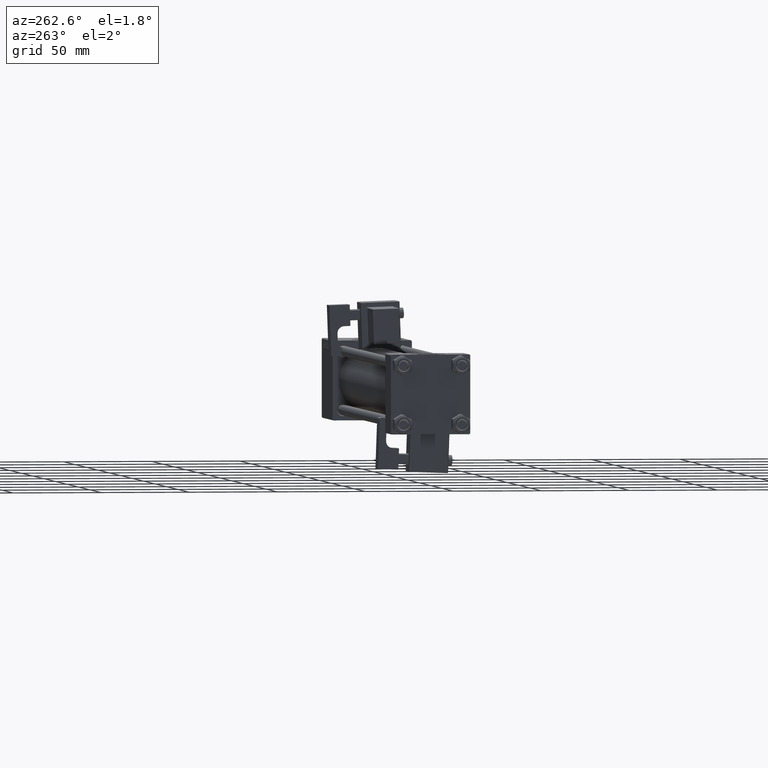
[diagram: clean part render]
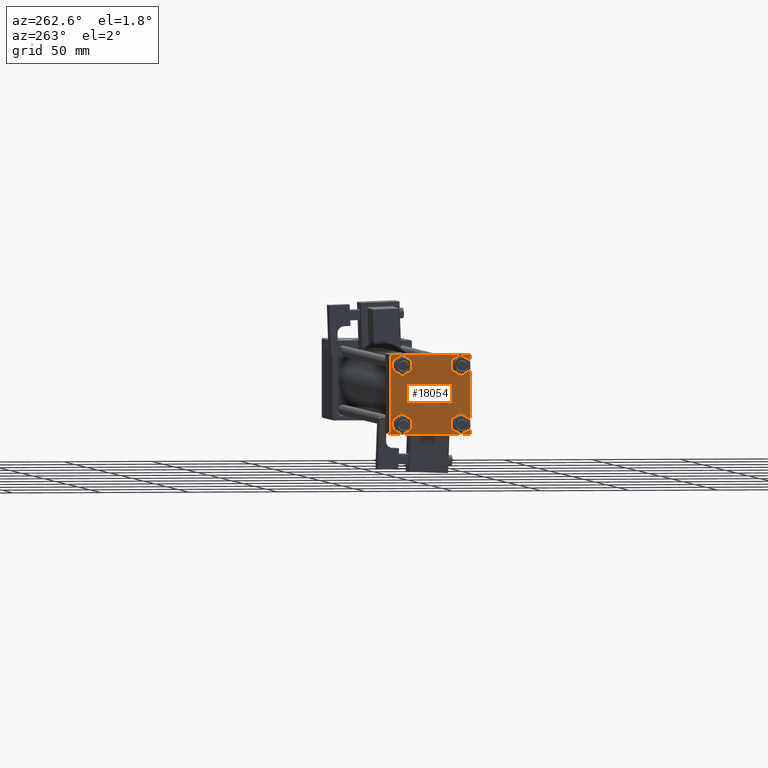
[diagram: same view with one face highlighted and labeled with its STEP entity id]
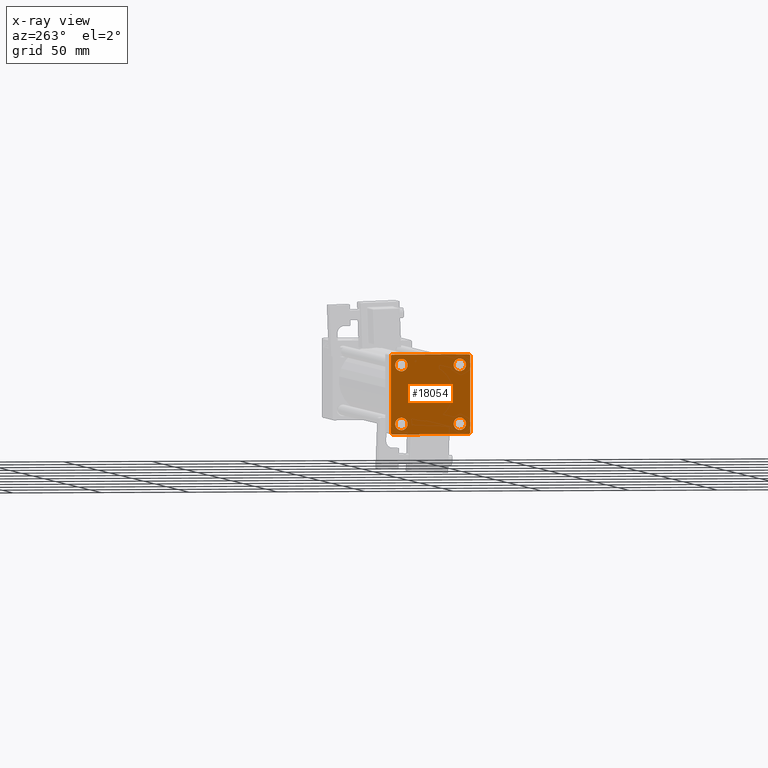
[diagram: x-ray of the same camera — body ghosted, the highlighted face saturated]
A machine part, auxiliary view. The second image highlights one B-rep face of the part: STEP entity #18054.
The next image is the same camera in x-ray: the body ghosted, the highlighted face saturated — about 0% of this face is hidden behind the body in this view.
In plain terms, the highlighted planar face has unit normal (-1, 0, 0).
Its self-contained STEP definition (entity closure, byte-faithful):
#8 = DIRECTION ( 'NONE',  ( 1.000000000000000000, -0.000000000000000000, 0.000000000000000000 ) ) ;
#50 = DIRECTION ( 'NONE',  ( 0.000000000000000000, 0.000000000000000000, 1.000000000000000000 ) ) ;
#506 = LINE ( 'NONE', #26033, #52658 ) ;
#507 = VERTEX_POINT ( 'NONE', #11094 ) ;
#1384 = EDGE_CURVE ( 'NONE', #51421, #54634, #50373, .T. ) ;
#1867 = VERTEX_POINT ( 'NONE', #33712 ) ;
#2038 = AXIS2_PLACEMENT_3D ( 'NONE', #22070, #13939, #35237 ) ;
#2128 = CARTESIAN_POINT ( 'NONE',  ( 0.000000000000000000, 22.50000000000000000, 21.99999999999999645 ) ) ;
#2385 = CARTESIAN_POINT ( 'NONE',  ( 0.000000000000000000, -22.50000000000000000, 22.00000000000000000 ) ) ;
#2458 = FACE_BOUND ( 'NONE', #39224, .T. ) ;
#3156 = CIRCLE ( 'NONE', #10321, 3.499999999999996003 ) ;
#4103 = CIRCLE ( 'NONE', #35450, 3.499999999999996003 ) ;
#4284 = DIRECTION ( 'NONE',  ( 0.000000000000000000, 0.000000000000000000, 1.000000000000000000 ) ) ;
#5623 = ORIENTED_EDGE ( 'NONE', *, *, #7350, .F. ) ;
#5683 = VERTEX_POINT ( 'NONE', #13536 ) ;
#5816 = AXIS2_PLACEMENT_3D ( 'NONE', #25249, #51018, #38966 ) ;
#5964 = DIRECTION ( 'NONE',  ( 1.000000000000000000, -0.000000000000000000, 0.000000000000000000 ) ) ;
#6400 = FACE_OUTER_BOUND ( 'NONE', #44681, .T. ) ;
#6950 = FACE_BOUND ( 'NONE', #28597, .T. ) ;
#7306 = VERTEX_POINT ( 'NONE', #2385 ) ;
#7350 = EDGE_CURVE ( 'NONE', #1867, #26925, #54779, .T. ) ;
#7800 = CARTESIAN_POINT ( 'NONE',  ( 0.000000000000000000, -22.50000000000000000, 22.50000000000000000 ) ) ;
#8456 = CARTESIAN_POINT ( 'NONE',  ( 0.000000000000000000, -16.59999999999999076, 16.60000000000000853 ) ) ;
#8560 = CARTESIAN_POINT ( 'NONE',  ( 0.000000000000000000, 22.50000000000000000, -21.99999999999996803 ) ) ;
#8706 = DIRECTION ( 'NONE',  ( 0.000000000000000000, 0.000000000000000000, 1.000000000000000000 ) ) ;
#8928 = EDGE_CURVE ( 'NONE', #7306, #33150, #46193, .T. ) ;
#9042 = DIRECTION ( 'NONE',  ( 1.000000000000000000, -0.000000000000000000, 0.000000000000000000 ) ) ;
#9608 = CARTESIAN_POINT ( 'NONE',  ( 0.000000000000000000, -22.50000000000000000, -21.99999999999997158 ) ) ;
#9843 = EDGE_CURVE ( 'NONE', #19627, #50441, #3156, .T. ) ;
#9905 = CARTESIAN_POINT ( 'NONE',  ( 0.000000000000000000, 22.50000000000000000, -22.49999999999999645 ) ) ;
#10321 = AXIS2_PLACEMENT_3D ( 'NONE', #16769, #46741, #43103 ) ;
#10798 = ORIENTED_EDGE ( 'NONE', *, *, #33310, .T. ) ;
#10916 = CARTESIAN_POINT ( 'NONE',  ( 0.000000000000000000, -21.99999999999997868, 22.50000000000000000 ) ) ;
#11094 = CARTESIAN_POINT ( 'NONE',  ( 0.000000000000000000, 16.59999999999999787, -13.10000000000000675 ) ) ;
#11406 = DIRECTION ( 'NONE',  ( 0.000000000000000000, 0.000000000000000000, 1.000000000000000000 ) ) ;
#11550 = VECTOR ( 'NONE', #34128, 1000.000000000000114 ) ;
#12223 = AXIS2_PLACEMENT_3D ( 'NONE', #23226, #36662, #49005 ) ;
#12738 = EDGE_CURVE ( 'NONE', #5683, #507, #4103, .T. ) ;
#12963 = CARTESIAN_POINT ( 'NONE',  ( 0.000000000000000000, -16.59999999999999076, -13.10000000000001030 ) ) ;
#13263 = CARTESIAN_POINT ( 'NONE',  ( 0.000000000000000000, 16.59999999999999787, -16.60000000000000497 ) ) ;
#13341 = EDGE_CURVE ( 'NONE', #28652, #13635, #17878, .T. ) ;
#13536 = CARTESIAN_POINT ( 'NONE',  ( 0.000000000000000000, 16.59999999999999787, -20.10000000000000142 ) ) ;
#13635 = VERTEX_POINT ( 'NONE', #8560 ) ;
#13939 = DIRECTION ( 'NONE',  ( 1.000000000000000000, -0.000000000000000000, 0.000000000000000000 ) ) ;
#14393 = DIRECTION ( 'NONE',  ( 0.000000000000000000, -1.000000000000000000, -2.312964634635742957E-16 ) ) ;
#14638 = AXIS2_PLACEMENT_3D ( 'NONE', #32435, #31892, #11406 ) ;
#15414 = DIRECTION ( 'NONE',  ( 0.000000000000000000, -0.7071067811865426878, 0.7071067811865524577 ) ) ;
#15641 = EDGE_CURVE ( 'NONE', #31278, #33150, #41475, .T. ) ;
#16442 = CIRCLE ( 'NONE', #14638, 3.499999999999996003 ) ;
#16769 = CARTESIAN_POINT ( 'NONE',  ( 0.000000000000000000, 16.59999999999999787, 16.60000000000000497 ) ) ;
#17154 = CARTESIAN_POINT ( 'NONE',  ( 0.000000000000000000, 16.59999999999999787, 20.10000000000000142 ) ) ;
#17878 = LINE ( 'NONE', #34987, #45324 ) ;
#18054 = ADVANCED_FACE ( 'NONE', ( #40864, #6950, #2458, #45611, #6400 ), #19562, .T. ) ;
#18850 = AXIS2_PLACEMENT_3D ( 'NONE', #8456, #51337, #50 ) ;
#19118 = LINE ( 'NONE', #44905, #27773 ) ;
#19562 = PLANE ( 'NONE',  #12223 ) ;
#19627 = VERTEX_POINT ( 'NONE', #17154 ) ;
#20810 = EDGE_CURVE ( 'NONE', #54634, #51421, #55117, .T. ) ;
#21012 = ORIENTED_EDGE ( 'NONE', *, *, #20810, .T. ) ;
#22068 = AXIS2_PLACEMENT_3D ( 'NONE', #38409, #8, #8706 ) ;
#22070 = CARTESIAN_POINT ( 'NONE',  ( 0.000000000000000000, -16.59999999999999076, -16.60000000000000853 ) ) ;
#23226 = CARTESIAN_POINT ( 'NONE',  ( 0.000000000000000000, 0.000000000000000000, 0.000000000000000000 ) ) ;
#24460 = ORIENTED_EDGE ( 'NONE', *, *, #12738, .T. ) ;
#24518 = ORIENTED_EDGE ( 'NONE', *, *, #15641, .T. ) ;
#24669 = VECTOR ( 'NONE', #14393, 1000.000000000000000 ) ;
#25249 = CARTESIAN_POINT ( 'NONE',  ( 0.000000000000000000, 16.59999999999999787, 16.60000000000000497 ) ) ;
#26033 = CARTESIAN_POINT ( 'NONE',  ( 0.000000000000000000, 22.25000000000014566, -22.24999999999984013 ) ) ;
#26314 = ORIENTED_EDGE ( 'NONE', *, *, #30672, .T. ) ;
#26925 = VERTEX_POINT ( 'NONE', #10916 ) ;
#27382 = AXIS2_PLACEMENT_3D ( 'NONE', #32317, #5964, #35958 ) ;
#27773 = VECTOR ( 'NONE', #53025, 999.9999999999998863 ) ;
#28220 = CIRCLE ( 'NONE', #5816, 3.499999999999996003 ) ;
#28597 = EDGE_LOOP ( 'NONE', ( #42977, #21012 ) ) ;
#28652 = VERTEX_POINT ( 'NONE', #2128 ) ;
#30222 = CARTESIAN_POINT ( 'NONE',  ( 0.000000000000000000, -16.59999999999999076, -20.10000000000000497 ) ) ;
#30672 = EDGE_CURVE ( 'NONE', #53564, #41418, #43000, .T. ) ;
#31278 = VERTEX_POINT ( 'NONE', #49833 ) ;
#31892 = DIRECTION ( 'NONE',  ( 1.000000000000000000, -0.000000000000000000, 0.000000000000000000 ) ) ;
#31998 = ORIENTED_EDGE ( 'NONE', *, *, #9843, .T. ) ;
#32317 = CARTESIAN_POINT ( 'NONE',  ( 0.000000000000000000, -16.59999999999999076, -16.60000000000000853 ) ) ;
#32435 = CARTESIAN_POINT ( 'NONE',  ( 0.000000000000000000, -16.59999999999999076, 16.60000000000000853 ) ) ;
#33150 = VERTEX_POINT ( 'NONE', #9608 ) ;
#33310 = EDGE_CURVE ( 'NONE', #7306, #26925, #19118, .T. ) ;
#33712 = CARTESIAN_POINT ( 'NONE',  ( 0.000000000000000000, 21.99999999999999289, 22.50000000000000355 ) ) ;
#34128 = DIRECTION ( 'NONE',  ( 0.000000000000000000, 0.7071067811865474617, -0.7071067811865474617 ) ) ;
#34696 = VECTOR ( 'NONE', #15414, 1000.000000000000000 ) ;
#34987 = CARTESIAN_POINT ( 'NONE',  ( 0.000000000000000000, 22.50000000000000000, 22.50000000000000355 ) ) ;
#35237 = DIRECTION ( 'NONE',  ( 0.000000000000000000, 0.000000000000000000, 1.000000000000000000 ) ) ;
#35255 = DIRECTION ( 'NONE',  ( 0.000000000000000000, 0.000000000000000000, -1.000000000000000000 ) ) ;
#35450 = AXIS2_PLACEMENT_3D ( 'NONE', #13263, #9042, #4284 ) ;
#35611 = CARTESIAN_POINT ( 'NONE',  ( 0.000000000000000000, -16.59999999999999076, 20.10000000000000853 ) ) ;
#35958 = DIRECTION ( 'NONE',  ( 0.000000000000000000, 0.000000000000000000, 1.000000000000000000 ) ) ;
#36662 = DIRECTION ( 'NONE',  ( -1.000000000000000000, 0.000000000000000000, -0.000000000000000000 ) ) ;
#38322 = LINE ( 'NONE', #47008, #11550 ) ;
#38409 = CARTESIAN_POINT ( 'NONE',  ( 0.000000000000000000, 16.59999999999999787, -16.60000000000000497 ) ) ;
#38776 = ORIENTED_EDGE ( 'NONE', *, *, #44933, .T. ) ;
#38966 = DIRECTION ( 'NONE',  ( 0.000000000000000000, 0.000000000000000000, 1.000000000000000000 ) ) ;
#39224 = EDGE_LOOP ( 'NONE', ( #47408, #24460 ) ) ;
#39842 = VECTOR ( 'NONE', #42170, 1000.000000000000000 ) ;
#40010 = EDGE_LOOP ( 'NONE', ( #31998, #52375 ) ) ;
#40090 = CARTESIAN_POINT ( 'NONE',  ( 0.000000000000000000, 16.59999999999999787, 13.10000000000000675 ) ) ;
#40307 = EDGE_CURVE ( 'NONE', #41418, #53564, #16442, .T. ) ;
#40685 = EDGE_CURVE ( 'NONE', #50441, #19627, #28220, .T. ) ;
#40864 = FACE_BOUND ( 'NONE', #47560, .T. ) ;
#41418 = VERTEX_POINT ( 'NONE', #53386 ) ;
#41475 = LINE ( 'NONE', #49594, #34696 ) ;
#41995 = DIRECTION ( 'NONE',  ( 0.000000000000000000, 0.000000000000000000, -1.000000000000000000 ) ) ;
#42170 = DIRECTION ( 'NONE',  ( 0.000000000000000000, -1.000000000000000000, -7.709882115452476934E-17 ) ) ;
#42977 = ORIENTED_EDGE ( 'NONE', *, *, #1384, .T. ) ;
#43000 = CIRCLE ( 'NONE', #18850, 3.499999999999996003 ) ;
#43103 = DIRECTION ( 'NONE',  ( 0.000000000000000000, 0.000000000000000000, 1.000000000000000000 ) ) ;
#44283 = VECTOR ( 'NONE', #41995, 1000.000000000000000 ) ;
#44681 = EDGE_LOOP ( 'NONE', ( #52225, #55007, #38776, #24518, #48391, #10798, #5623, #48834 ) ) ;
#44905 = CARTESIAN_POINT ( 'NONE',  ( -0.000000000000000000, -22.24999999999984013, 22.25000000000015277 ) ) ;
#44933 = EDGE_CURVE ( 'NONE', #46921, #31278, #49129, .T. ) ;
#45324 = VECTOR ( 'NONE', #35255, 1000.000000000000000 ) ;
#45611 = FACE_BOUND ( 'NONE', #40010, .T. ) ;
#46193 = LINE ( 'NONE', #7800, #44283 ) ;
#46741 = DIRECTION ( 'NONE',  ( 1.000000000000000000, -0.000000000000000000, 0.000000000000000000 ) ) ;
#46921 = VERTEX_POINT ( 'NONE', #48383 ) ;
#47008 = CARTESIAN_POINT ( 'NONE',  ( 0.000000000000000000, 22.24999999999999645, 22.24999999999999645 ) ) ;
#47125 = ORIENTED_EDGE ( 'NONE', *, *, #40307, .T. ) ;
#47408 = ORIENTED_EDGE ( 'NONE', *, *, #49471, .T. ) ;
#47560 = EDGE_LOOP ( 'NONE', ( #26314, #47125 ) ) ;
#48383 = CARTESIAN_POINT ( 'NONE',  ( 0.000000000000000000, 21.99999999999999289, -22.49999999999999645 ) ) ;
#48391 = ORIENTED_EDGE ( 'NONE', *, *, #8928, .F. ) ;
#48834 = ORIENTED_EDGE ( 'NONE', *, *, #54662, .T. ) ;
#49005 = DIRECTION ( 'NONE',  ( -0.000000000000000000, 0.000000000000000000, 1.000000000000000000 ) ) ;
#49129 = LINE ( 'NONE', #9905, #24669 ) ;
#49471 = EDGE_CURVE ( 'NONE', #507, #5683, #55168, .T. ) ;
#49594 = CARTESIAN_POINT ( 'NONE',  ( 0.000000000000000000, -22.25000000000014566, -22.24999999999984013 ) ) ;
#49833 = CARTESIAN_POINT ( 'NONE',  ( 0.000000000000000000, -21.99999999999997158, -22.50000000000000711 ) ) ;
#50373 = CIRCLE ( 'NONE', #2038, 3.499999999999996003 ) ;
#50441 = VERTEX_POINT ( 'NONE', #40090 ) ;
#50848 = CARTESIAN_POINT ( 'NONE',  ( 0.000000000000000000, 22.50000000000000000, 22.50000000000000355 ) ) ;
#51018 = DIRECTION ( 'NONE',  ( 1.000000000000000000, -0.000000000000000000, 0.000000000000000000 ) ) ;
#51337 = DIRECTION ( 'NONE',  ( 1.000000000000000000, -0.000000000000000000, 0.000000000000000000 ) ) ;
#51421 = VERTEX_POINT ( 'NONE', #12963 ) ;
#51511 = DIRECTION ( 'NONE',  ( -0.000000000000000000, -0.7071067811865426878, -0.7071067811865524577 ) ) ;
#52225 = ORIENTED_EDGE ( 'NONE', *, *, #13341, .T. ) ;
#52375 = ORIENTED_EDGE ( 'NONE', *, *, #40685, .T. ) ;
#52658 = VECTOR ( 'NONE', #51511, 1000.000000000000000 ) ;
#53025 = DIRECTION ( 'NONE',  ( -0.000000000000000000, 0.7071067811865525687, 0.7071067811865425767 ) ) ;
#53386 = CARTESIAN_POINT ( 'NONE',  ( 0.000000000000000000, -16.59999999999999076, 13.10000000000001030 ) ) ;
#53564 = VERTEX_POINT ( 'NONE', #35611 ) ;
#53930 = EDGE_CURVE ( 'NONE', #13635, #46921, #506, .T. ) ;
#54634 = VERTEX_POINT ( 'NONE', #30222 ) ;
#54662 = EDGE_CURVE ( 'NONE', #1867, #28652, #38322, .T. ) ;
#54779 = LINE ( 'NONE', #50848, #39842 ) ;
#55007 = ORIENTED_EDGE ( 'NONE', *, *, #53930, .T. ) ;
#55117 = CIRCLE ( 'NONE', #27382, 3.499999999999996003 ) ;
#55168 = CIRCLE ( 'NONE', #22068, 3.499999999999996003 ) ;